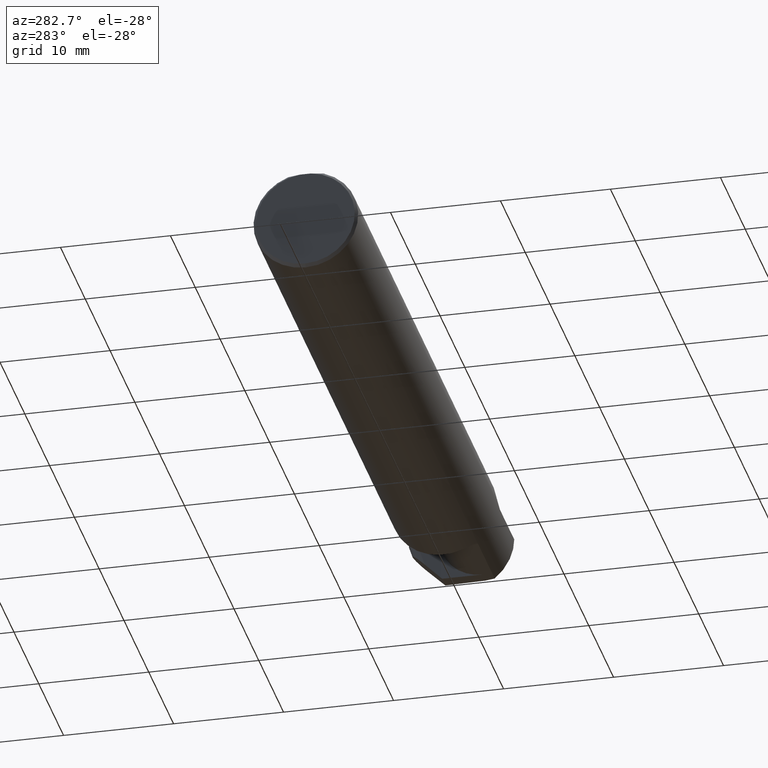
[diagram: clean part render]
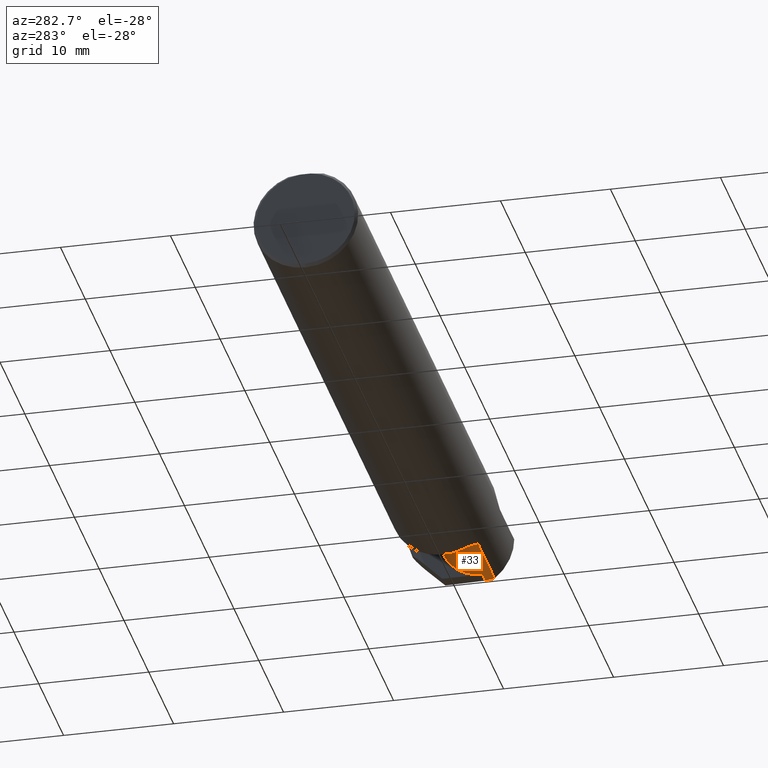
[diagram: same view with one face highlighted and labeled with its STEP entity id]
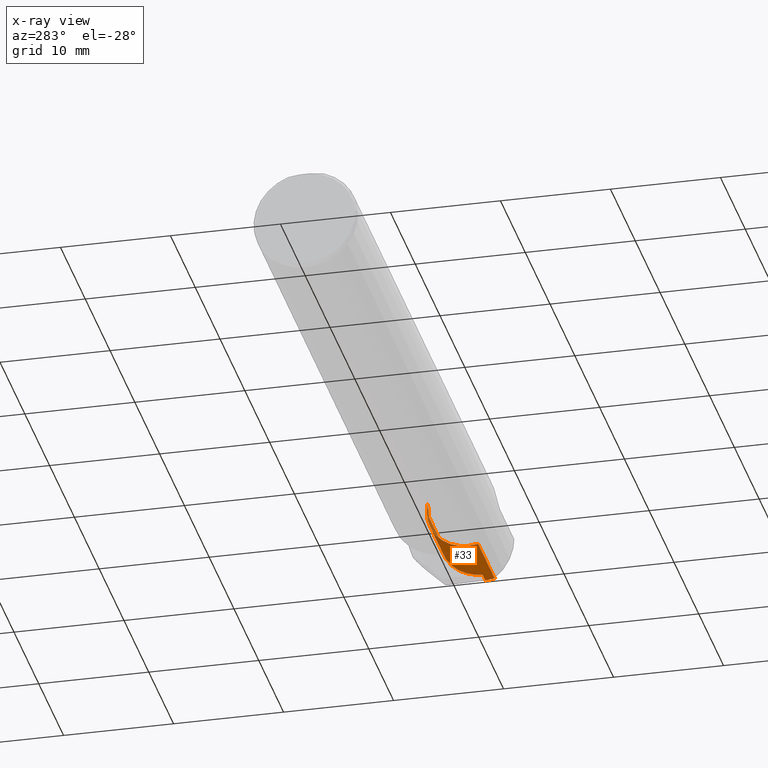
[diagram: x-ray of the same camera — body ghosted, the highlighted face saturated]
A machine part, auxiliary view. The second image highlights one B-rep face of the part: STEP entity #33.
The next image is the same camera in x-ray: the body ghosted, the highlighted face saturated — about 6% of this face is hidden behind the body in this view.
In plain terms, the highlighted cylindrical surface (partial cylindrical patch) has radius 3.81 mm, axis along (-1, -0, -0).
Its self-contained STEP definition (entity closure, byte-faithful):
#4 = LINE ( 'NONE', #230, #67 ) ;
#9 = FACE_OUTER_BOUND ( 'NONE', #270, .T. ) ;
#10 = EDGE_CURVE ( 'NONE', #474, #621, #190, .T. ) ;
#33 = ADVANCED_FACE ( 'NONE', ( #9 ), #500, .T. ) ;
#39 =( BOUNDED_CURVE ( )  B_SPLINE_CURVE ( 3, ( #165, #644, #545, #101 ),
 .UNSPECIFIED., .F., .F. ) 
 B_SPLINE_CURVE_WITH_KNOTS ( ( 4, 4 ),
 ( 0.8789888184544107919, 1.107026853503860098 ),
 .UNSPECIFIED. ) 
 CURVE ( )  GEOMETRIC_REPRESENTATION_ITEM ( )  RATIONAL_B_SPLINE_CURVE ( ( 1.000000000000000000, 0.9956712472009928705, 0.9956712472009928705, 1.000000000000000000 ) ) 
 REPRESENTATION_ITEM ( '' )  );
#66 = CARTESIAN_POINT ( 'NONE',  ( 2.441498648347320000, 0.06357628547474601655, -0.09063792740366179157 ) ) ;
#67 = VECTOR ( 'NONE', #349, 39.37007874015748143 ) ;
#71 = LINE ( 'NONE', #513, #552 ) ;
#91 = CARTESIAN_POINT ( 'NONE',  ( 2.430739223982273156, 0.06664999999999991764, 0.000000000000000000 ) ) ;
#96 = AXIS2_PLACEMENT_3D ( 'NONE', #123, #553, #651 ) ;
#101 = CARTESIAN_POINT ( 'NONE',  ( 2.489143054109411057, -0.08334999999999892495, -0.1500000000000000500 ) ) ;
#109 = LINE ( 'NONE', #331, #333 ) ;
#113 = CARTESIAN_POINT ( 'NONE',  ( 2.442617647571764028, -0.08334999999999999354, -0.1500000000000000777 ) ) ;
#123 = CARTESIAN_POINT ( 'NONE',  ( 2.225000000000000089, -0.08335000000000010456, 0.000000000000000000 ) ) ;
#165 = CARTESIAN_POINT ( 'NONE',  ( 2.488026713523223243, -0.1172600179964004286, -0.1461167706989304482 ) ) ;
#184 = CARTESIAN_POINT ( 'NONE',  ( 2.236476718690367793, 0.06526343940705725544, 0.02352328130963212902 ) ) ;
#190 =( BOUNDED_CURVE ( )  B_SPLINE_CURVE ( 3, ( #113, #288, #66, #507 ),
 .UNSPECIFIED., .F., .F. ) 
 B_SPLINE_CURVE_WITH_KNOTS ( ( 4, 4 ),
 ( 3.159045946109708236, 4.694935687864668417 ),
 .UNSPECIFIED. ) 
 CURVE ( )  GEOMETRIC_REPRESENTATION_ITEM ( )  RATIONAL_B_SPLINE_CURVE ( ( 1.000000000000000000, 0.8128932002257789335, 0.8128932002257789335, 1.000000000000000000 ) ) 
 REPRESENTATION_ITEM ( '' )  );
#198 = CARTESIAN_POINT ( 'NONE',  ( 2.225000000000000089, 0.06250952145814826777, 0.03500000000000007272 ) ) ;
#205 = VERTEX_POINT ( 'NONE', #469 ) ;
#216 = DIRECTION ( 'NONE',  ( -1.000000000000000000, -5.045929899059384297E-16, -0.000000000000000000 ) ) ;
#230 = CARTESIAN_POINT ( 'NONE',  ( 2.199999999999998845, 0.06655862405286083749, -0.005234924505475069094 ) ) ;
#238 = CARTESIAN_POINT ( 'NONE',  ( 2.200000000000000178, -0.08335000000000011844, 0.000000000000000000 ) ) ;
#240 = CARTESIAN_POINT ( 'NONE',  ( 2.430708765333227994, 0.06661954135095465857, -0.001744974835128322013 ) ) ;
#248 = ORIENTED_EDGE ( 'NONE', *, *, #413, .F. ) ;
#252 = VERTEX_POINT ( 'NONE', #646 ) ;
#269 = EDGE_CURVE ( 'NONE', #252, #205, #39, .T. ) ;
#270 = EDGE_LOOP ( 'NONE', ( #546, #466, #298, #313, #523, #248, #633, #515, #645 ) ) ;
#277 = EDGE_CURVE ( 'NONE', #205, #474, #109, .T. ) ;
#285 = CARTESIAN_POINT ( 'NONE',  ( 2.442617647571764028, -0.08334999999999999354, -0.1500000000000000777 ) ) ;
#288 = CARTESIAN_POINT ( 'NONE',  ( 2.442590694315768030, 0.002105059811798115545, -0.1500000000000000777 ) ) ;
#290 = CARTESIAN_POINT ( 'NONE',  ( 2.430647848035137226, 0.06655862405286411265, -0.005234924505384965822 ) ) ;
#298 = ORIENTED_EDGE ( 'NONE', *, *, #613, .T. ) ;
#304 = AXIS2_PLACEMENT_3D ( 'NONE', #238, #556, #610 ) ;
#313 = ORIENTED_EDGE ( 'NONE', *, *, #640, .T. ) ;
#316 = B_SPLINE_CURVE_WITH_KNOTS ( 'NONE', 3,
 ( #675, #420, #240, #91 ),
 .UNSPECIFIED., .F., .F.,
 ( 4, 4 ),
 ( 0.000000000000000000, 1.000000000000000000 ),
 .UNSPECIFIED. ) ;
#331 = CARTESIAN_POINT ( 'NONE',  ( 2.733184360054362827, -0.08334999999999892495, -0.1500000000000000500 ) ) ;
#333 = VECTOR ( 'NONE', #379, 39.37007874015748143 ) ;
#349 = DIRECTION ( 'NONE',  ( -1.000000000000000000, -5.045929899059384297E-16, -0.000000000000000000 ) ) ;
#370 = CARTESIAN_POINT ( 'NONE',  ( 2.430739223982273156, 0.06664999999999991764, 0.000000000000000000 ) ) ;
#373 = EDGE_CURVE ( 'NONE', #252, #699, #489, .T. ) ;
#379 = DIRECTION ( 'NONE',  ( -1.000000000000000000, -0.000000000000000000, -0.000000000000000000 ) ) ;
#383 = VECTOR ( 'NONE', #216, 39.37007874015748143 ) ;
#401 = CARTESIAN_POINT ( 'NONE',  ( 2.260000000000000231, 0.06664999999999991764, 2.939152317953647352E-17 ) ) ;
#402 = CIRCLE ( 'NONE', #96, 0.1500000000000001610 ) ;
#407 =( BOUNDED_CURVE ( )  B_SPLINE_CURVE ( 3, ( #198, #184, #414, #401 ),
 .UNSPECIFIED., .F., .F. ) 
 B_SPLINE_CURVE_WITH_KNOTS ( ( 4, 4 ),
 ( 1.335292090074097437, 1.570796326794897002 ),
 .UNSPECIFIED. ) 
 CURVE ( )  GEOMETRIC_REPRESENTATION_ITEM ( )  RATIONAL_B_SPLINE_CURVE ( ( 1.000000000000000000, 0.9953834841226971708, 0.9953834841226971708, 1.000000000000000000 ) ) 
 REPRESENTATION_ITEM ( '' )  );
#413 = EDGE_CURVE ( 'NONE', #621, #519, #4, .T. ) ;
#414 = CARTESIAN_POINT ( 'NONE',  ( 2.248197494504676097, 0.06665000000000000091, 0.01180250549532441649 ) ) ;
#420 = CARTESIAN_POINT ( 'NONE',  ( 2.430678306684182832, 0.06658908270190938561, -0.003489949670256644459 ) ) ;
#429 = CARTESIAN_POINT ( 'NONE',  ( 2.330930449999999876, -0.1172600179964005118, -0.1461167706989304482 ) ) ;
#466 = ORIENTED_EDGE ( 'NONE', *, *, #467, .F. ) ;
#467 = EDGE_CURVE ( 'NONE', #537, #699, #402, .T. ) ;
#469 = CARTESIAN_POINT ( 'NONE',  ( 2.489143054109411057, -0.08334999999999892495, -0.1500000000000000500 ) ) ;
#474 = VERTEX_POINT ( 'NONE', #285 ) ;
#489 = LINE ( 'NONE', #429, #383 ) ;
#500 = CYLINDRICAL_SURFACE ( 'NONE', #304, 0.1500000000000000777 ) ;
#505 = CARTESIAN_POINT ( 'NONE',  ( 2.225000000000000089, 0.06250952145814826777, 0.03500000000000007272 ) ) ;
#507 = CARTESIAN_POINT ( 'NONE',  ( 2.439954497345508511, 0.06655862405284596051, -0.005234924505382013322 ) ) ;
#513 = CARTESIAN_POINT ( 'NONE',  ( 2.200000000000000178, 0.06664999999999995928, 3.673940397442061963E-17 ) ) ;
#515 = ORIENTED_EDGE ( 'NONE', *, *, #277, .F. ) ;
#519 = VERTEX_POINT ( 'NONE', #290 ) ;
#523 = ORIENTED_EDGE ( 'NONE', *, *, #598, .F. ) ;
#537 = VERTEX_POINT ( 'NONE', #505 ) ;
#545 = CARTESIAN_POINT ( 'NONE',  ( 2.488744025780163849, -0.09477667630339342564, -0.1500000000000001887 ) ) ;
#546 = ORIENTED_EDGE ( 'NONE', *, *, #373, .T. ) ;
#552 = VECTOR ( 'NONE', #670, 39.37007874015748143 ) ;
#553 = DIRECTION ( 'NONE',  ( -1.000000000000000000, -5.045929899059384297E-16, -0.000000000000000000 ) ) ;
#556 = DIRECTION ( 'NONE',  ( -1.000000000000000000, -5.045929899059384297E-16, -0.000000000000000000 ) ) ;
#567 = CARTESIAN_POINT ( 'NONE',  ( 2.439954497345508511, 0.06655862405284596051, -0.005234924505382013322 ) ) ;
#583 = CARTESIAN_POINT ( 'NONE',  ( 2.225000000000000089, -0.1172600179964003314, -0.1461167706989305870 ) ) ;
#598 = EDGE_CURVE ( 'NONE', #519, #691, #316, .T. ) ;
#610 = DIRECTION ( 'NONE',  ( 0.000000000000000000, -1.000000000000000000, 0.000000000000000000 ) ) ;
#613 = EDGE_CURVE ( 'NONE', #537, #647, #407, .T. ) ;
#621 = VERTEX_POINT ( 'NONE', #567 ) ;
#626 = CARTESIAN_POINT ( 'NONE',  ( 2.260000000000000231, 0.06664999999999991764, 2.939152317953647352E-17 ) ) ;
#633 = ORIENTED_EDGE ( 'NONE', *, *, #10, .F. ) ;
#640 = EDGE_CURVE ( 'NONE', #647, #691, #71, .T. ) ;
#644 = CARTESIAN_POINT ( 'NONE',  ( 2.488370294460940269, -0.1061291577212404302, -0.1486999626928448281 ) ) ;
#645 = ORIENTED_EDGE ( 'NONE', *, *, #269, .F. ) ;
#646 = CARTESIAN_POINT ( 'NONE',  ( 2.488026713523223243, -0.1172600179964004286, -0.1461167706989304482 ) ) ;
#647 = VERTEX_POINT ( 'NONE', #626 ) ;
#651 = DIRECTION ( 'NONE',  ( 0.000000000000000000, -1.000000000000000000, 0.000000000000000000 ) ) ;
#670 = DIRECTION ( 'NONE',  ( 1.000000000000000000, 5.045929899059384297E-16, 0.000000000000000000 ) ) ;
#675 = CARTESIAN_POINT ( 'NONE',  ( 2.430647848035137226, 0.06655862405286411265, -0.005234924505384965822 ) ) ;
#691 = VERTEX_POINT ( 'NONE', #370 ) ;
#699 = VERTEX_POINT ( 'NONE', #583 ) ;